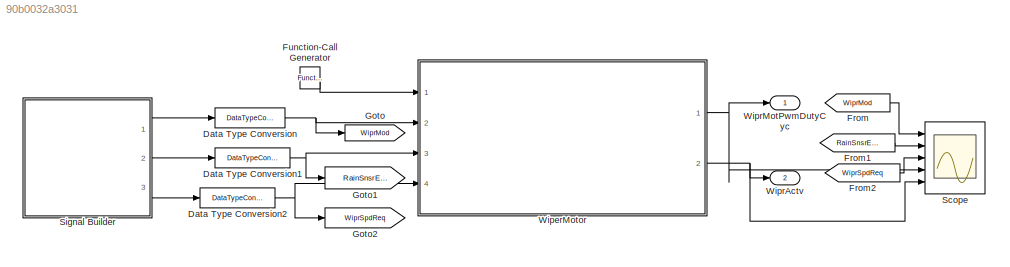
MODEL slx_90b0032a3031
KIND model
CONFIG AbsTol = auto
CONFIG EnableMultiTasking = off
CONFIG FixedStep = 0.01
CONFIG MaxStep = auto
CONFIG MinStep = auto
CONFIG RelTol = 1e-3
CONFIG SampleTimeConstraint = Unconstrained
CONFIG SolverName = FixedStepDiscrete
CONFIG StartTime = 0.0
CONFIG StopTime = 20
BLOCK [DataTypeConversion] Data Type Conversion
  OutDataTypeStr = uint8
  RndMeth = Floor
  SaturateOnIntegerOverflow = off
BLOCK [DataTypeConversion] Data Type Conversion1
  OutDataTypeStr = boolean
  RndMeth = Floor
  SaturateOnIntegerOverflow = off
BLOCK [DataTypeConversion] Data Type Conversion2
  OutDataTypeStr = uint8
  RndMeth = Floor
  SaturateOnIntegerOverflow = off
BLOCK [From] From
  GotoTag = WiprMod
BLOCK [From] From1
  GotoTag = RainSnsrErr
BLOCK [From] From2
  GotoTag = WiprSpdReq
BLOCK [Reference] Function-Call Generator  REF=simulink/Ports &
Subsystems/Function-Call
Generator
  Ports = [0, 1]
  SourceBlock = simulink/Ports &\nSubsystems/Function-Call\nGenerator
  SourceProductBaseCode = SL
  SourceType = Function-Call Generator
BLOCK [Goto] Goto
  GotoTag = WiprMod
BLOCK [Goto] Goto1
  GotoTag = RainSnsrErr
BLOCK [Goto] Goto2
  GotoTag = WiprSpdReq
BLOCK [Scope] Scope
  Floating = off
  NumInputPorts = 5
  Ports = [5]
  ScopeSpecificationString = Simulink.scopes.TimeScopeBlockCfg('CurrentConfiguration', extmgr.ConfigurationSet(extmgr.Configuration('Core','General UI',true),extmgr.Configuration('Core','Source UI',true),extmgr.Configuration('Sources','WiredSimulink',true),extmgr.Configuration('Visuals','Time Domain',true,'SerializedDisplays',{struct('MinYLimReal','-0.375','MaxYLimReal','3.375','YLabelReal','','MinYLimMag','0.00000','MaxYLimM...<+4817ch>
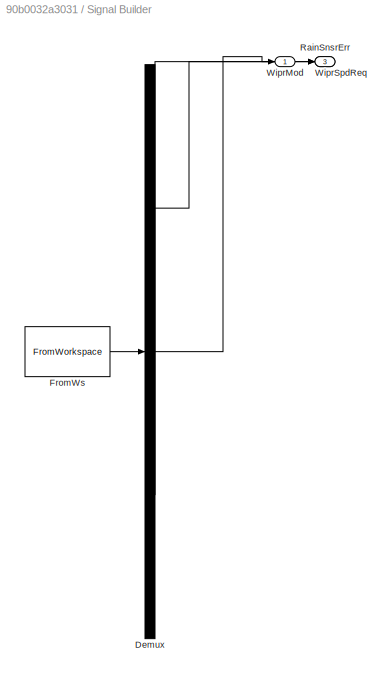
BLOCK [SubSystem] Signal Builder
  ClipboardFcn = sigbuilder_block('clipboard');
  CloseFcn = sigbuilder_block('close');
  ContinueFcn = sigbuilder_block('continue');
  CopyFcn = sigbuilder_block('copy');
  DeleteFcn = sigbuilder_block('delete');
  LoadFcn = sigbuilder_block('load');
  MaskHideContents = on
  ModelCloseFcn = sigbuilder_block('modelClose');
  NameChangeFcn = sigbuilder_block('namechange');
  OpenFcn = sigbuilder_block('open',[6 30 1188 546.75 ]);
  PauseFcn = sigbuilder_block('pause');
  Ports = [0, 3]
  PreSaveFcn = sigbuilder_block('preSave');
  RequestExecContextInheritance = off
  StartFcn = sigbuilder_block('start');
  StopFcn = sigbuilder_block('stop');
  Tag = STV Subsys
BLOCK [Demux] Signal Builder/Demux
  DisplayOption = none
  Outputs = 3
  Ports = [1, 3]
  Tag = STV Demux
BLOCK [FromWorkspace] Signal Builder/FromWs
  Tag = STV FromWs
  VariableName = tuvar
BLOCK [Outport] Signal Builder/RainSnsrErr
  Port = 2
  Tag = STV Outport
BLOCK [Outport] Signal Builder/WiprMod
  Tag = STV Outport
BLOCK [Outport] Signal Builder/WiprSpdReq
  Port = 3
  Tag = STV Outport
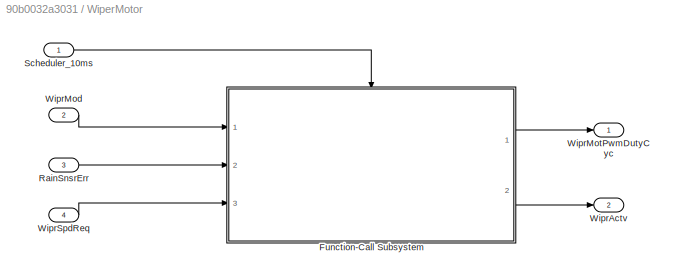
BLOCK [SubSystem] WiperMotor
  Ports = [4, 2]
  RequestExecContextInheritance = off
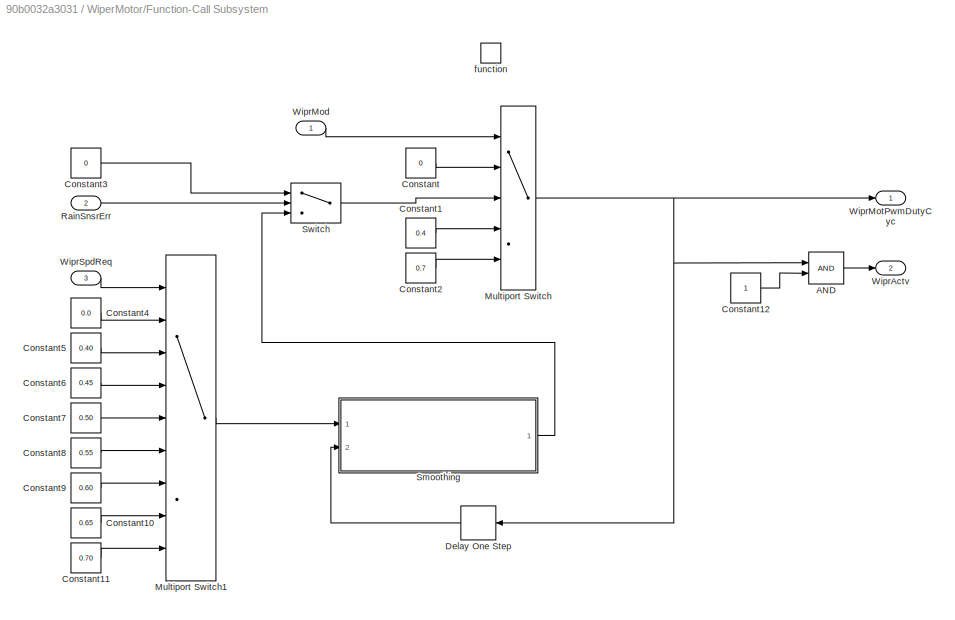
BLOCK [SubSystem] WiperMotor/Function-Call Subsystem
  Ports = [3, 2, 0, 1]
  RequestExecContextInheritance = off
  TreatAsAtomicUnit = on
BLOCK [Logic] WiperMotor/Function-Call Subsystem/AND
  AllPortsSameDT = off
  IconShape = distinctive
  OutDataTypeStr = boolean
  Ports = [2, 1]
BLOCK [Constant] WiperMotor/Function-Call Subsystem/Constant
  Value = 0
BLOCK [Constant] WiperMotor/Function-Call Subsystem/Constant1
  Value = 0.4
BLOCK [Constant] WiperMotor/Function-Call Subsystem/Constant10
  Value = 0.65
BLOCK [Constant] WiperMotor/Function-Call Subsystem/Constant11
  Value = 0.70
BLOCK [Constant] WiperMotor/Function-Call Subsystem/Constant12
BLOCK [Constant] WiperMotor/Function-Call Subsystem/Constant2
  Value = 0.7
BLOCK [Constant] WiperMotor/Function-Call Subsystem/Constant3
  Value = 0
BLOCK [Constant] WiperMotor/Function-Call Subsystem/Constant4
  Value = 0.0
BLOCK [Constant] WiperMotor/Function-Call Subsystem/Constant5
  Value = 0.40
BLOCK [Constant] WiperMotor/Function-Call Subsystem/Constant6
  Value = 0.45
BLOCK [Constant] WiperMotor/Function-Call Subsystem/Constant7
  Value = 0.50
BLOCK [Constant] WiperMotor/Function-Call Subsystem/Constant8
  Value = 0.55
BLOCK [Constant] WiperMotor/Function-Call Subsystem/Constant9
  Value = 0.60
BLOCK [Delay] WiperMotor/Function-Call Subsystem/Delay One Step
  DelayLength = 1
  InputPortMap = u0
  NameLocation = top
  Ports = [1, 1]
BLOCK [MultiPortSwitch] WiperMotor/Function-Call Subsystem/Multiport Switch
  DataPortOrder = Zero-based contiguous
  InputSameDT = off
  Inputs = 4
  Ports = [5, 1]
  SaturateOnIntegerOverflow = off
  zeroidx = on
BLOCK [MultiPortSwitch] WiperMotor/Function-Call Subsystem/Multiport Switch1
  DataPortOrder = Zero-based contiguous
  InputSameDT = off
  Inputs = 8
  Ports = [9, 1]
  SaturateOnIntegerOverflow = off
  zeroidx = on
BLOCK [Inport] WiperMotor/Function-Call Subsystem/RainSnsrErr
  OutDataTypeStr = boolean
  Port = 2
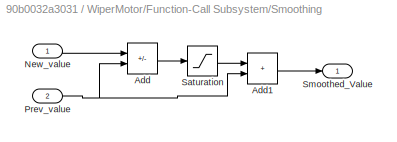
BLOCK [SubSystem] WiperMotor/Function-Call Subsystem/Smoothing
  Ports = [2, 1]
  RequestExecContextInheritance = off
BLOCK [Sum] WiperMotor/Function-Call Subsystem/Smoothing/Add
  IconShape = rectangular
  Inputs = +-
  Ports = [2, 1]
BLOCK [Sum] WiperMotor/Function-Call Subsystem/Smoothing/Add1
  IconShape = rectangular
  Ports = [2, 1]
BLOCK [Inport] WiperMotor/Function-Call Subsystem/Smoothing/New_value
BLOCK [Inport] WiperMotor/Function-Call Subsystem/Smoothing/Prev_value
  NameLocation = top
  Port = 2
BLOCK [Saturate] WiperMotor/Function-Call Subsystem/Smoothing/Saturation
  LowerLimit = -0.005
  UpperLimit = 0.005
BLOCK [Outport] WiperMotor/Function-Call Subsystem/Smoothing/Smoothed_Value
BLOCK [Switch] WiperMotor/Function-Call Subsystem/Switch
  OutDataTypeStr = boolean
  SaturateOnIntegerOverflow = off
BLOCK [Outport] WiperMotor/Function-Call Subsystem/WiprActv
  OutDataTypeStr = boolean
  Port = 2
BLOCK [Inport] WiperMotor/Function-Call Subsystem/WiprMod
  OutDataTypeStr = uint8
BLOCK [Outport] WiperMotor/Function-Call Subsystem/WiprMotPwmDutyCyc
  OutDataTypeStr = double
BLOCK [Inport] WiperMotor/Function-Call Subsystem/WiprSpdReq
  OutDataTypeStr = uint8
  Port = 3
BLOCK [TriggerPort] WiperMotor/Function-Call Subsystem/function
  Ports = []
  StatesWhenEnabling = held
  TriggerType = function-call
  VariantControl = Variant
BLOCK [Inport] WiperMotor/RainSnsrErr
  OutDataTypeStr = boolean
  Port = 3
BLOCK [Inport] WiperMotor/Scheduler_10ms
BLOCK [Outport] WiperMotor/WiprActv
  Port = 2
BLOCK [Inport] WiperMotor/WiprMod
  OutDataTypeStr = uint8
  Port = 2
BLOCK [Outport] WiperMotor/WiprMotPwmDutyCyc
BLOCK [Inport] WiperMotor/WiprSpdReq
  OutDataTypeStr = uint8
  Port = 4
BLOCK [Outport] WiprActv
  Port = 2
BLOCK [Outport] WiprMotPwmDutyCyc
NET Data Type Conversion1:1 -> Goto1:1, WiperMotor:3
NET Data Type Conversion2:1 -> Goto2:1, WiperMotor:4
NET Data Type Conversion:1 -> Goto:1, WiperMotor:2
LINE From1:1 -> Scope:2
LINE From2:1 -> Scope:3
LINE From:1 -> Scope:1
LINE Function-Call Generator:1 -> WiperMotor:1
LINE Signal Builder:1 -> Data Type Conversion:1
LINE Signal Builder:2 -> Data Type Conversion1:1
LINE Signal Builder:3 -> Data Type Conversion2:1
LINE WiperMotor/Function-Call Subsystem/AND:1 -> WiperMotor/Function-Call Subsystem/WiprActv:1
LINE WiperMotor/Function-Call Subsystem/Constant10:1 -> WiperMotor/Function-Call Subsystem/Multiport Switch1:8
LINE WiperMotor/Function-Call Subsystem/Constant11:1 -> WiperMotor/Function-Call Subsystem/Multiport Switch1:9
LINE WiperMotor/Function-Call Subsystem/Constant12:1 -> WiperMotor/Function-Call Subsystem/AND:2
LINE WiperMotor/Function-Call Subsystem/Constant1:1 -> WiperMotor/Function-Call Subsystem/Multiport Switch:4
LINE WiperMotor/Function-Call Subsystem/Constant2:1 -> WiperMotor/Function-Call Subsystem/Multiport Switch:5
LINE WiperMotor/Function-Call Subsystem/Constant3:1 -> WiperMotor/Function-Call Subsystem/Switch:1
LINE WiperMotor/Function-Call Subsystem/Constant4:1 -> WiperMotor/Function-Call Subsystem/Multiport Switch1:2
LINE WiperMotor/Function-Call Subsystem/Constant5:1 -> WiperMotor/Function-Call Subsystem/Multiport Switch1:3
LINE WiperMotor/Function-Call Subsystem/Constant6:1 -> WiperMotor/Function-Call Subsystem/Multiport Switch1:4
LINE WiperMotor/Function-Call Subsystem/Constant7:1 -> WiperMotor/Function-Call Subsystem/Multiport Switch1:5
LINE WiperMotor/Function-Call Subsystem/Constant8:1 -> WiperMotor/Function-Call Subsystem/Multiport Switch1:6
LINE WiperMotor/Function-Call Subsystem/Constant9:1 -> WiperMotor/Function-Call Subsystem/Multiport Switch1:7
LINE WiperMotor/Function-Call Subsystem/Constant:1 -> WiperMotor/Function-Call Subsystem/Multiport Switch:2
LINE WiperMotor/Function-Call Subsystem/Delay One Step:1 -> WiperMotor/Function-Call Subsystem/Smoothing:2
LINE WiperMotor/Function-Call Subsystem/Multiport Switch1:1 -> WiperMotor/Function-Call Subsystem/Smoothing:1
NET WiperMotor/Function-Call Subsystem/Multiport Switch:1 -> WiperMotor/Function-Call Subsystem/AND:1, WiperMotor/Function-Call Subsystem/Delay One Step:1, WiperMotor/Function-Call Subsystem/WiprMotPwmDutyCyc:1
LINE WiperMotor/Function-Call Subsystem/RainSnsrErr:1 -> WiperMotor/Function-Call Subsystem/Switch:2
LINE WiperMotor/Function-Call Subsystem/Smoothing/Add1:1 -> WiperMotor/Function-Call Subsystem/Smoothing/Smoothed_Value:1
LINE WiperMotor/Function-Call Subsystem/Smoothing/Add:1 -> WiperMotor/Function-Call Subsystem/Smoothing/Saturation:1
LINE WiperMotor/Function-Call Subsystem/Smoothing/New_value:1 -> WiperMotor/Function-Call Subsystem/Smoothing/Add:1
NET WiperMotor/Function-Call Subsystem/Smoothing/Prev_value:1 -> WiperMotor/Function-Call Subsystem/Smoothing/Add1:2, WiperMotor/Function-Call Subsystem/Smoothing/Add:2
LINE WiperMotor/Function-Call Subsystem/Smoothing/Saturation:1 -> WiperMotor/Function-Call Subsystem/Smoothing/Add1:1
LINE WiperMotor/Function-Call Subsystem/Smoothing:1 -> WiperMotor/Function-Call Subsystem/Switch:3
LINE WiperMotor/Function-Call Subsystem/Switch:1 -> WiperMotor/Function-Call Subsystem/Multiport Switch:3
LINE WiperMotor/Function-Call Subsystem/WiprMod:1 -> WiperMotor/Function-Call Subsystem/Multiport Switch:1
LINE WiperMotor/Function-Call Subsystem/WiprSpdReq:1 -> WiperMotor/Function-Call Subsystem/Multiport Switch1:1
LINE WiperMotor/Function-Call Subsystem:1 -> WiperMotor/WiprMotPwmDutyCyc:1
LINE WiperMotor/Function-Call Subsystem:2 -> WiperMotor/WiprActv:1
LINE WiperMotor/RainSnsrErr:1 -> WiperMotor/Function-Call Subsystem:2
LINE WiperMotor/Scheduler_10ms:1 -> WiperMotor/Function-Call Subsystem:trigger
LINE WiperMotor/WiprMod:1 -> WiperMotor/Function-Call Subsystem:1
LINE WiperMotor/WiprSpdReq:1 -> WiperMotor/Function-Call Subsystem:3
NET WiperMotor:1 -> Scope:4, WiprMotPwmDutyCyc:1
NET WiperMotor:2 -> Scope:5, WiprActv:1
note: NET lines group one-source signal fan-out (src -> all destinations, sorted); 1:1 wires keep LINE
